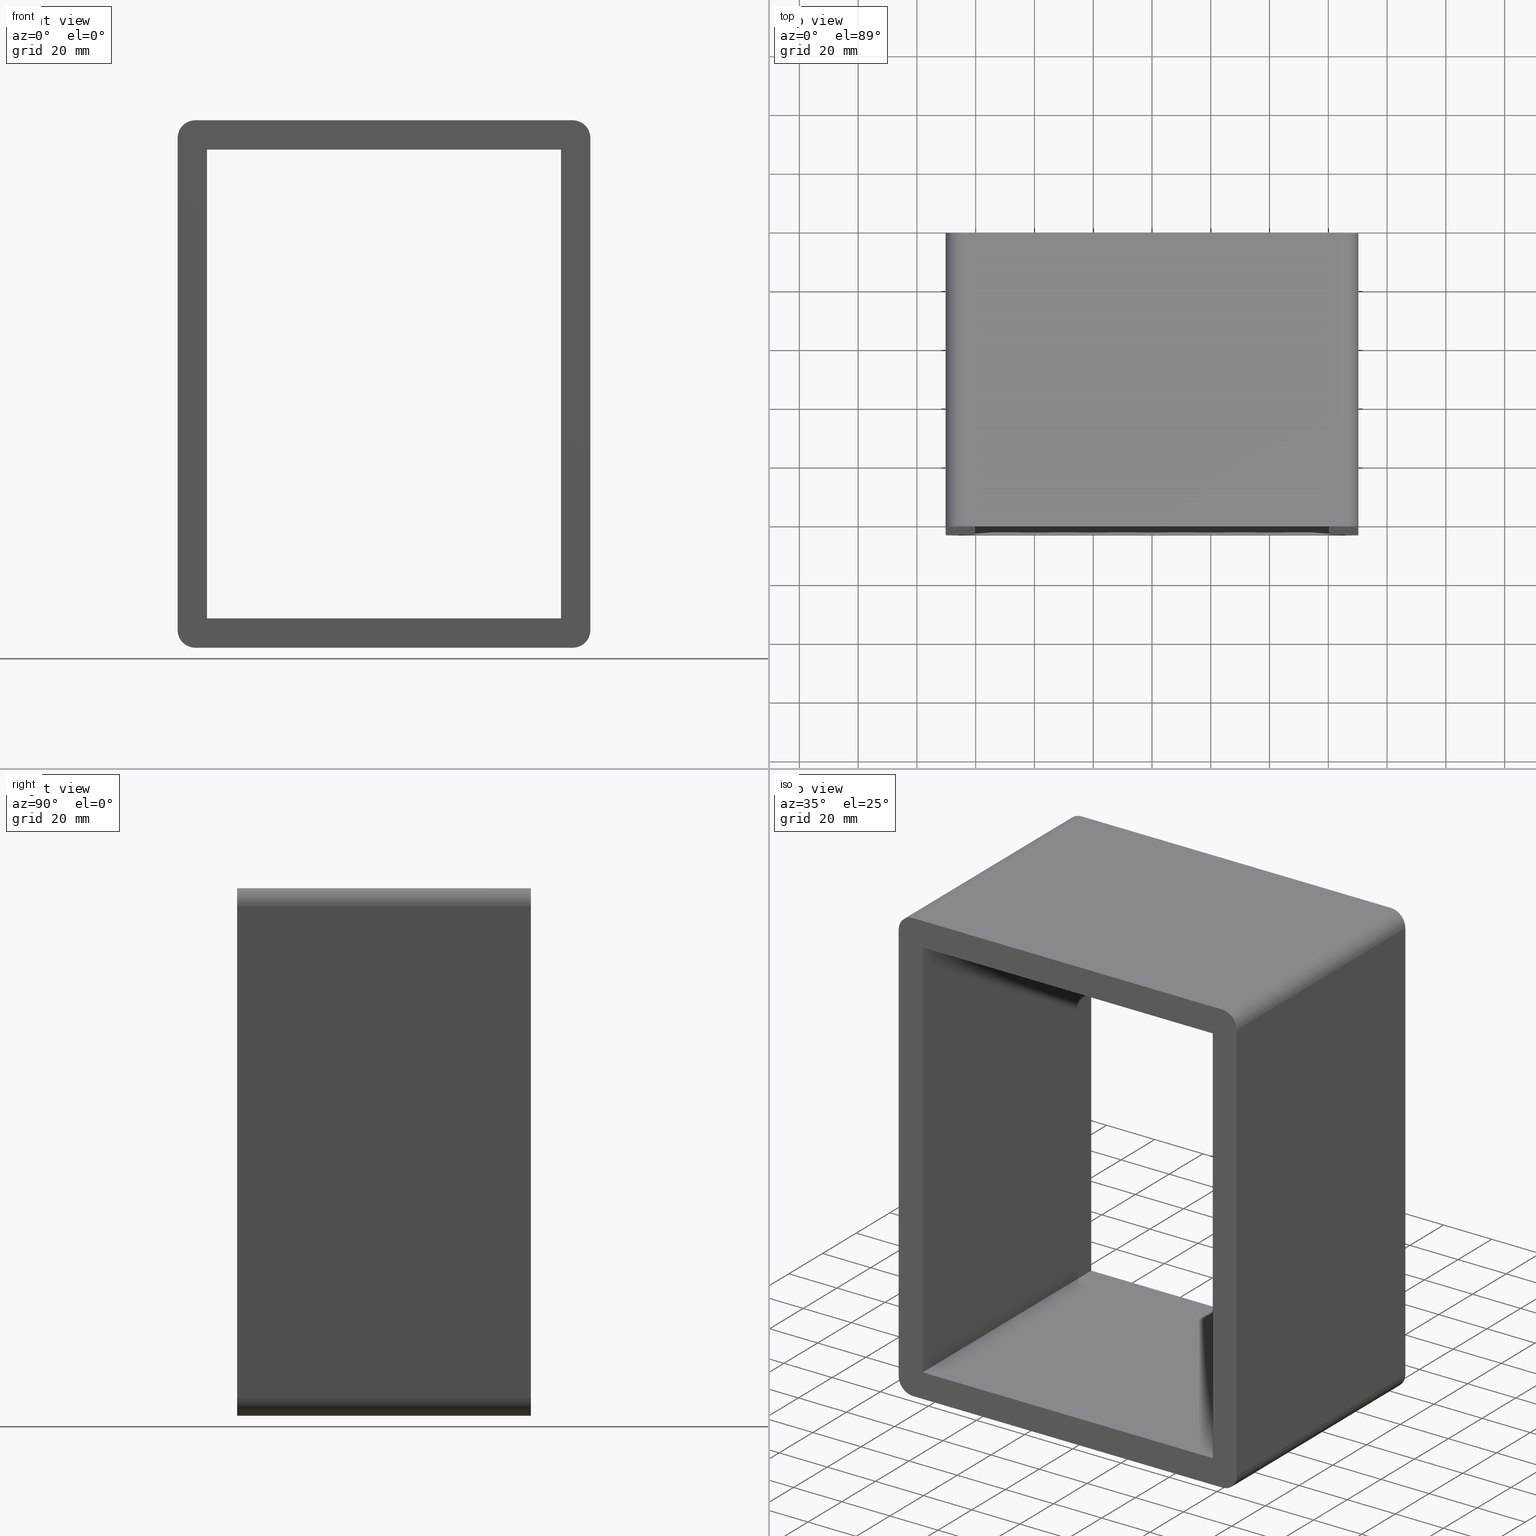
[diagram: canonical four-view strip — front | top / right | iso, engineering-drawing reading convention]
A machine part, canonical four-view strip (front | top / right | iso — engineering-drawing reading convention). The complete STEP part file that produces these views, byte-faithful:
ISO-10303-21;
HEADER;
/****************************************************************
 * Generated by software with PDElib inside                    *
 * PDElib Version v51a, created Wed 11/30/2011                  *
 * ITI Transcendata (http://www.transcendata.com/)              *
 ****************************************************************/
FILE_DESCRIPTION((''),'2;1');
FILE_NAME('C:\\RoxtecConfigurator\\CreatedFiles\\STEP\\SK4X1.stp','2013-01-29T16:11:37',(''),(''),'Autodesk Inventor 2013','Autodesk Inventor 2013','');
FILE_SCHEMA(('AUTOMOTIVE_DESIGN { 1 0 10303 214 1 1 1 1 }'));
ENDSEC;
DATA;
#5=APPLICATION_CONTEXT('automotive design');
#6=APPLICATION_PROTOCOL_DEFINITION('International Standard','automotive_design',2001,#5);
#7=PRODUCT_CONTEXT('',#5,'mechanical');
#8=PRODUCT('roxtec S_SF_G','roxtec S_SF_G',$,(#7));
#9=PRODUCT_RELATED_PRODUCT_CATEGORY('part',$,(#8));
#10=PRODUCT_DEFINITION_FORMATION('',$,#8);
#11=PRODUCT_DEFINITION_CONTEXT('part definition',#5,'design');
#12=PRODUCT_DEFINITION('',$,#10,#11);
#18=(NAMED_UNIT(*)PLANE_ANGLE_UNIT()SI_UNIT($,.RADIAN.));
#19=DIMENSIONAL_EXPONENTS(0.0,0.0,0.0,0.0,0.0,0.0,0.0);
#20=PLANE_ANGLE_MEASURE_WITH_UNIT(PLANE_ANGLE_MEASURE(0.0174532925),#18);
#24=(CONVERSION_BASED_UNIT('DEGREE',#20)NAMED_UNIT(#19)PLANE_ANGLE_UNIT());
#28=(NAMED_UNIT(*)SI_UNIT($,.STERADIAN.)SOLID_ANGLE_UNIT());
#32=(LENGTH_UNIT()NAMED_UNIT(*)SI_UNIT(.MILLI.,.METRE.));
#34=UNCERTAINTY_MEASURE_WITH_UNIT(LENGTH_MEASURE(0.01),#32,'DISTANCE_ACCURACY_VALUE','');
#36=(GEOMETRIC_REPRESENTATION_CONTEXT(3)GLOBAL_UNCERTAINTY_ASSIGNED_CONTEXT((#34))GLOBAL_UNIT_ASSIGNED_CONTEXT((#24,#28,#32))REPRESENTATION_CONTEXT('None','None'));
#37=AXIS2_PLACEMENT_3D('',#38,#39,#40);
#38=CARTESIAN_POINT('',(0.0,0.0,0.0));
#39=DIRECTION('',(0.0,0.0,1.0));
#40=DIRECTION('',(1.0,0.0,0.0));
#41=SHAPE_REPRESENTATION('',(#37),#36);
#42=PRODUCT_DEFINITION_SHAPE('','',#12);
#43=SHAPE_DEFINITION_REPRESENTATION(#42,#41);
#49=(NAMED_UNIT(*)PLANE_ANGLE_UNIT()SI_UNIT($,.RADIAN.));
#50=DIMENSIONAL_EXPONENTS(0.0,0.0,0.0,0.0,0.0,0.0,0.0);
#51=PLANE_ANGLE_MEASURE_WITH_UNIT(PLANE_ANGLE_MEASURE(0.0174532925),#49);
#55=(CONVERSION_BASED_UNIT('DEGREE',#51)NAMED_UNIT(#50)PLANE_ANGLE_UNIT());
#59=(NAMED_UNIT(*)SI_UNIT($,.STERADIAN.)SOLID_ANGLE_UNIT());
#63=(LENGTH_UNIT()NAMED_UNIT(*)SI_UNIT(.MILLI.,.METRE.));
#65=UNCERTAINTY_MEASURE_WITH_UNIT(LENGTH_MEASURE(0.000001),#63,'DISTANCE_ACCURACY_VALUE','');
#67=(GEOMETRIC_REPRESENTATION_CONTEXT(3)GLOBAL_UNCERTAINTY_ASSIGNED_CONTEXT((#65))GLOBAL_UNIT_ASSIGNED_CONTEXT((#55,#59,#63))REPRESENTATION_CONTEXT('','3D'));
#68=CARTESIAN_POINT('',(60.250000000000021,0.0,79.750000000000014));
#69=DIRECTION('',(1.0,0.0,0.0));
#70=DIRECTION('',(0.0,0.0,-1.0));
#71=AXIS2_PLACEMENT_3D('',#68,#69,#70);
#72=PLANE('',#71);
#73=CARTESIAN_POINT('',(60.250000000000021,97.0,-79.750000000000028));
#74=VERTEX_POINT('',#73);
#75=CARTESIAN_POINT('',(60.250000000000021,-3.0,-79.750000000000028));
#76=VERTEX_POINT('',#75);
#77=CARTESIAN_POINT('',(60.250000000000021,97.0,-79.750000000000028));
#78=DIRECTION('',(0.0,-1.0,0.0));
#79=VECTOR('',#78,100.0);
#80=LINE('',#77,#79);
#81=EDGE_CURVE('',#74,#76,#80,.T.);
#82=ORIENTED_EDGE('',*,*,#81,.T.);
#83=CARTESIAN_POINT('',(60.250000000000021,-3.0,79.750000000000014));
#84=VERTEX_POINT('',#83);
#85=CARTESIAN_POINT('',(60.250000000000021,-3.0,79.750000000000014));
#86=DIRECTION('',(0.0,0.0,-1.0));
#87=VECTOR('',#86,159.50000000000006);
#88=LINE('',#85,#87);
#89=EDGE_CURVE('',#84,#76,#88,.T.);
#90=ORIENTED_EDGE('',*,*,#89,.F.);
#91=CARTESIAN_POINT('',(60.250000000000021,97.0,79.750000000000014));
#92=VERTEX_POINT('',#91);
#93=CARTESIAN_POINT('',(60.250000000000021,-3.0,79.750000000000014));
#94=DIRECTION('',(0.0,1.0,0.0));
#95=VECTOR('',#94,100.0);
#96=LINE('',#93,#95);
#97=EDGE_CURVE('',#84,#92,#96,.T.);
#98=ORIENTED_EDGE('',*,*,#97,.T.);
#99=CARTESIAN_POINT('',(60.250000000000021,97.0,-79.750000000000043));
#100=DIRECTION('',(0.0,0.0,1.0));
#101=VECTOR('',#100,159.50000000000006);
#102=LINE('',#99,#101);
#103=EDGE_CURVE('',#74,#92,#102,.T.);
#104=ORIENTED_EDGE('',*,*,#103,.F.);
#105=EDGE_LOOP('',(#82,#90,#98,#104));
#106=FACE_OUTER_BOUND('',#105,.T.);
#107=ADVANCED_FACE('',(#106),#72,.F.);
#108=CARTESIAN_POINT('',(-60.25,0.0,79.750000000000014));
#109=DIRECTION('',(0.0,0.0,1.0));
#110=DIRECTION('',(1.0,0.0,0.0));
#111=AXIS2_PLACEMENT_3D('',#108,#109,#110);
#112=PLANE('',#111);
#113=ORIENTED_EDGE('',*,*,#97,.F.);
#114=CARTESIAN_POINT('',(-60.25,-3.0,79.750000000000014));
#115=VERTEX_POINT('',#114);
#116=CARTESIAN_POINT('',(-60.25,-3.0,79.750000000000014));
#117=DIRECTION('',(1.0,0.0,0.0));
#118=VECTOR('',#117,120.50000000000001);
#119=LINE('',#116,#118);
#120=EDGE_CURVE('',#115,#84,#119,.T.);
#121=ORIENTED_EDGE('',*,*,#120,.F.);
#122=CARTESIAN_POINT('',(-60.25,97.0,79.750000000000014));
#123=VERTEX_POINT('',#122);
#124=CARTESIAN_POINT('',(-60.25,-3.0,79.750000000000014));
#125=DIRECTION('',(0.0,1.0,0.0));
#126=VECTOR('',#125,100.0);
#127=LINE('',#124,#126);
#128=EDGE_CURVE('',#115,#123,#127,.T.);
#129=ORIENTED_EDGE('',*,*,#128,.T.);
#130=CARTESIAN_POINT('',(60.250000000000014,97.0,79.750000000000014));
#131=DIRECTION('',(-1.0,0.0,0.0));
#132=VECTOR('',#131,120.50000000000001);
#133=LINE('',#130,#132);
#134=EDGE_CURVE('',#92,#123,#133,.T.);
#135=ORIENTED_EDGE('',*,*,#134,.F.);
#136=EDGE_LOOP('',(#113,#121,#129,#135));
#137=FACE_OUTER_BOUND('',#136,.T.);
#138=ADVANCED_FACE('',(#137),#112,.F.);
#139=CARTESIAN_POINT('',(-60.25,0.0,-79.750000000000028));
#140=DIRECTION('',(-1.0,0.0,0.0));
#141=DIRECTION('',(0.0,0.0,1.0));
#142=AXIS2_PLACEMENT_3D('',#139,#140,#141);
#143=PLANE('',#142);
#144=ORIENTED_EDGE('',*,*,#128,.F.);
#145=CARTESIAN_POINT('',(-60.25,-3.0,-79.750000000000028));
#146=VERTEX_POINT('',#145);
#147=CARTESIAN_POINT('',(-60.25,-3.0,-79.750000000000028));
#148=DIRECTION('',(0.0,0.0,1.0));
#149=VECTOR('',#148,159.50000000000006);
#150=LINE('',#147,#149);
#151=EDGE_CURVE('',#146,#115,#150,.T.);
#152=ORIENTED_EDGE('',*,*,#151,.F.);
#153=CARTESIAN_POINT('',(-60.25,97.0,-79.750000000000028));
#154=VERTEX_POINT('',#153);
#155=CARTESIAN_POINT('',(-60.25,-3.0,-79.750000000000028));
#156=DIRECTION('',(0.0,1.0,0.0));
#157=VECTOR('',#156,100.0);
#158=LINE('',#155,#157);
#159=EDGE_CURVE('',#146,#154,#158,.T.);
#160=ORIENTED_EDGE('',*,*,#159,.T.);
#161=CARTESIAN_POINT('',(-60.25,97.0,79.750000000000028));
#162=DIRECTION('',(0.0,0.0,-1.0));
#163=VECTOR('',#162,159.50000000000006);
#164=LINE('',#161,#163);
#165=EDGE_CURVE('',#123,#154,#164,.T.);
#166=ORIENTED_EDGE('',*,*,#165,.F.);
#167=EDGE_LOOP('',(#144,#152,#160,#166));
#168=FACE_OUTER_BOUND('',#167,.T.);
#169=ADVANCED_FACE('',(#168),#143,.F.);
#170=CARTESIAN_POINT('',(60.250000000000021,0.0,-79.750000000000028));
#171=DIRECTION('',(0.0,0.0,-1.0));
#172=DIRECTION('',(-1.0,0.0,0.0));
#173=AXIS2_PLACEMENT_3D('',#170,#171,#172);
#174=PLANE('',#173);
#175=ORIENTED_EDGE('',*,*,#159,.F.);
#176=CARTESIAN_POINT('',(60.250000000000021,-3.0,-79.750000000000028));
#177=DIRECTION('',(-1.0,0.0,0.0));
#178=VECTOR('',#177,120.50000000000003);
#179=LINE('',#176,#178);
#180=EDGE_CURVE('',#76,#146,#179,.T.);
#181=ORIENTED_EDGE('',*,*,#180,.F.);
#182=ORIENTED_EDGE('',*,*,#81,.F.);
#183=CARTESIAN_POINT('',(-60.25,97.0,-79.750000000000028));
#184=DIRECTION('',(1.0,0.0,0.0));
#185=VECTOR('',#184,120.50000000000003);
#186=LINE('',#183,#185);
#187=EDGE_CURVE('',#154,#74,#186,.T.);
#188=ORIENTED_EDGE('',*,*,#187,.F.);
#189=EDGE_LOOP('',(#175,#181,#182,#188));
#190=FACE_OUTER_BOUND('',#189,.T.);
#191=ADVANCED_FACE('',(#190),#174,.F.);
#192=CARTESIAN_POINT('',(-2.147868E-016,-3.0,-9.235834E-015));
#193=DIRECTION('',(0.0,1.0,0.0));
#194=DIRECTION('',(0.0,0.0,1.0));
#195=AXIS2_PLACEMENT_3D('',#192,#193,#194);
#196=PLANE('',#195);
#197=CARTESIAN_POINT('',(70.25,-3.0,-83.750000000000028));
#198=VERTEX_POINT('',#197);
#199=CARTESIAN_POINT('',(70.25,-3.0,83.75));
#200=VERTEX_POINT('',#199);
#201=CARTESIAN_POINT('',(70.25,-3.0,-83.750000000000028));
#202=DIRECTION('',(0.0,0.0,1.0));
#203=VECTOR('',#202,167.50000000000003);
#204=LINE('',#201,#203);
#205=EDGE_CURVE('',#198,#200,#204,.T.);
#206=ORIENTED_EDGE('',*,*,#205,.T.);
#207=CARTESIAN_POINT('',(64.25,-3.0,89.750000000000014));
#208=VERTEX_POINT('',#207);
#209=CARTESIAN_POINT('',(64.25,-3.0,83.75));
#210=DIRECTION('',(0.0,-1.0,0.0));
#211=DIRECTION('',(0.0,0.0,1.0));
#212=AXIS2_PLACEMENT_3D('',#209,#210,#211);
#213=CIRCLE('',#212,6.000000000000001);
#214=EDGE_CURVE('',#200,#208,#213,.T.);
#215=ORIENTED_EDGE('',*,*,#214,.T.);
#216=CARTESIAN_POINT('',(-64.25,-3.0,89.750000000000014));
#217=VERTEX_POINT('',#216);
#218=CARTESIAN_POINT('',(64.25,-3.0,89.750000000000014));
#219=DIRECTION('',(-1.0,0.0,0.0));
#220=VECTOR('',#219,128.5);
#221=LINE('',#218,#220);
#222=EDGE_CURVE('',#208,#217,#221,.T.);
#223=ORIENTED_EDGE('',*,*,#222,.T.);
#224=CARTESIAN_POINT('',(-70.25,-3.0,83.75));
#225=VERTEX_POINT('',#224);
#226=CARTESIAN_POINT('',(-64.25,-3.0,83.75));
#227=DIRECTION('',(0.0,-1.0,0.0));
#228=DIRECTION('',(-1.0,0.0,0.0));
#229=AXIS2_PLACEMENT_3D('',#226,#227,#228);
#230=CIRCLE('',#229,6.000000000000001);
#231=EDGE_CURVE('',#217,#225,#230,.T.);
#232=ORIENTED_EDGE('',*,*,#231,.T.);
#233=CARTESIAN_POINT('',(-70.25,-3.0,-83.750000000000028));
#234=VERTEX_POINT('',#233);
#235=CARTESIAN_POINT('',(-70.25,-3.0,83.75));
#236=DIRECTION('',(0.0,0.0,-1.0));
#237=VECTOR('',#236,167.50000000000003);
#238=LINE('',#235,#237);
#239=EDGE_CURVE('',#225,#234,#238,.T.);
#240=ORIENTED_EDGE('',*,*,#239,.T.);
#241=CARTESIAN_POINT('',(-64.25,-3.0,-89.750000000000014));
#242=VERTEX_POINT('',#241);
#243=CARTESIAN_POINT('',(-64.25,-3.0,-83.750000000000028));
#244=DIRECTION('',(0.0,-1.0,0.0));
#245=DIRECTION('',(0.0,0.0,-1.0));
#246=AXIS2_PLACEMENT_3D('',#243,#244,#245);
#247=CIRCLE('',#246,6.000000000000001);
#248=EDGE_CURVE('',#234,#242,#247,.T.);
#249=ORIENTED_EDGE('',*,*,#248,.T.);
#250=CARTESIAN_POINT('',(64.25,-3.0,-89.750000000000014));
#251=VERTEX_POINT('',#250);
#252=CARTESIAN_POINT('',(-64.25,-3.0,-89.750000000000014));
#253=DIRECTION('',(1.0,0.0,0.0));
#254=VECTOR('',#253,128.5);
#255=LINE('',#252,#254);
#256=EDGE_CURVE('',#242,#251,#255,.T.);
#257=ORIENTED_EDGE('',*,*,#256,.T.);
#258=CARTESIAN_POINT('',(64.25,-3.0,-83.750000000000028));
#259=DIRECTION('',(0.0,-1.0,0.0));
#260=DIRECTION('',(1.0,0.0,0.0));
#261=AXIS2_PLACEMENT_3D('',#258,#259,#260);
#262=CIRCLE('',#261,6.000000000000001);
#263=EDGE_CURVE('',#251,#198,#262,.T.);
#264=ORIENTED_EDGE('',*,*,#263,.T.);
#265=EDGE_LOOP('',(#206,#215,#223,#232,#240,#249,#257,#264));
#266=FACE_OUTER_BOUND('',#265,.T.);
#267=ORIENTED_EDGE('',*,*,#89,.T.);
#268=ORIENTED_EDGE('',*,*,#180,.T.);
#269=ORIENTED_EDGE('',*,*,#151,.T.);
#270=ORIENTED_EDGE('',*,*,#120,.T.);
#271=EDGE_LOOP('',(#267,#268,#269,#270));
#272=FACE_BOUND('',#271,.T.);
#273=ADVANCED_FACE('',(#266,#272),#196,.F.);
#274=CARTESIAN_POINT('',(64.25,0.0,83.75));
#275=DIRECTION('',(0.0,1.0,0.0));
#276=DIRECTION('',(0.0,0.0,1.0));
#277=AXIS2_PLACEMENT_3D('',#274,#275,#276);
#278=CYLINDRICAL_SURFACE('',#277,6.000000000000001);
#279=CARTESIAN_POINT('',(70.25,97.0,83.75));
#280=VERTEX_POINT('',#279);
#281=CARTESIAN_POINT('',(70.25,97.0,83.75));
#282=DIRECTION('',(0.0,-1.0,0.0));
#283=VECTOR('',#282,100.0);
#284=LINE('',#281,#283);
#285=EDGE_CURVE('',#280,#200,#284,.T.);
#286=ORIENTED_EDGE('',*,*,#285,.F.);
#287=CARTESIAN_POINT('',(64.25,97.0,89.750000000000014));
#288=VERTEX_POINT('',#287);
#289=CARTESIAN_POINT('',(64.25,97.0,83.75));
#290=DIRECTION('',(0.0,1.0,0.0));
#291=DIRECTION('',(0.0,0.0,1.0));
#292=AXIS2_PLACEMENT_3D('',#289,#290,#291);
#293=CIRCLE('',#292,6.000000000000001);
#294=EDGE_CURVE('',#288,#280,#293,.T.);
#295=ORIENTED_EDGE('',*,*,#294,.F.);
#296=CARTESIAN_POINT('',(64.25,-3.0,89.750000000000014));
#297=DIRECTION('',(0.0,1.0,0.0));
#298=VECTOR('',#297,100.0);
#299=LINE('',#296,#298);
#300=EDGE_CURVE('',#208,#288,#299,.T.);
#301=ORIENTED_EDGE('',*,*,#300,.F.);
#302=ORIENTED_EDGE('',*,*,#214,.F.);
#303=EDGE_LOOP('',(#286,#295,#301,#302));
#304=FACE_OUTER_BOUND('',#303,.T.);
#305=ADVANCED_FACE('',(#304),#278,.T.);
#306=CARTESIAN_POINT('',(-64.25,0.0,89.750000000000014));
#307=DIRECTION('',(0.0,0.0,1.0));
#308=DIRECTION('',(1.0,0.0,0.0));
#309=AXIS2_PLACEMENT_3D('',#306,#307,#308);
#310=PLANE('',#309);
#311=ORIENTED_EDGE('',*,*,#300,.T.);
#312=CARTESIAN_POINT('',(-64.25,97.0,89.750000000000014));
#313=VERTEX_POINT('',#312);
#314=CARTESIAN_POINT('',(-64.25,97.0,89.750000000000014));
#315=DIRECTION('',(1.0,0.0,0.0));
#316=VECTOR('',#315,128.5);
#317=LINE('',#314,#316);
#318=EDGE_CURVE('',#313,#288,#317,.T.);
#319=ORIENTED_EDGE('',*,*,#318,.F.);
#320=CARTESIAN_POINT('',(-64.25,-3.0,89.750000000000014));
#321=DIRECTION('',(0.0,1.0,0.0));
#322=VECTOR('',#321,100.0);
#323=LINE('',#320,#322);
#324=EDGE_CURVE('',#217,#313,#323,.T.);
#325=ORIENTED_EDGE('',*,*,#324,.F.);
#326=ORIENTED_EDGE('',*,*,#222,.F.);
#327=EDGE_LOOP('',(#311,#319,#325,#326));
#328=FACE_OUTER_BOUND('',#327,.T.);
#329=ADVANCED_FACE('',(#328),#310,.T.);
#330=CARTESIAN_POINT('',(-64.25,0.0,83.75));
#331=DIRECTION('',(0.0,1.0,0.0));
#332=DIRECTION('',(-1.0,0.0,0.0));
#333=AXIS2_PLACEMENT_3D('',#330,#331,#332);
#334=CYLINDRICAL_SURFACE('',#333,6.000000000000001);
#335=ORIENTED_EDGE('',*,*,#324,.T.);
#336=CARTESIAN_POINT('',(-70.25,97.0,83.75));
#337=VERTEX_POINT('',#336);
#338=CARTESIAN_POINT('',(-64.25,97.0,83.75));
#339=DIRECTION('',(0.0,1.0,0.0));
#340=DIRECTION('',(-1.0,0.0,0.0));
#341=AXIS2_PLACEMENT_3D('',#338,#339,#340);
#342=CIRCLE('',#341,6.000000000000001);
#343=EDGE_CURVE('',#337,#313,#342,.T.);
#344=ORIENTED_EDGE('',*,*,#343,.F.);
#345=CARTESIAN_POINT('',(-70.25,-3.0,83.75));
#346=DIRECTION('',(0.0,1.0,0.0));
#347=VECTOR('',#346,100.0);
#348=LINE('',#345,#347);
#349=EDGE_CURVE('',#225,#337,#348,.T.);
#350=ORIENTED_EDGE('',*,*,#349,.F.);
#351=ORIENTED_EDGE('',*,*,#231,.F.);
#352=EDGE_LOOP('',(#335,#344,#350,#351));
#353=FACE_OUTER_BOUND('',#352,.T.);
#354=ADVANCED_FACE('',(#353),#334,.T.);
#355=CARTESIAN_POINT('',(-70.25,0.0,-83.750000000000028));
#356=DIRECTION('',(-1.0,0.0,0.0));
#357=DIRECTION('',(0.0,0.0,1.0));
#358=AXIS2_PLACEMENT_3D('',#355,#356,#357);
#359=PLANE('',#358);
#360=ORIENTED_EDGE('',*,*,#349,.T.);
#361=CARTESIAN_POINT('',(-70.25,97.0,-83.750000000000028));
#362=VERTEX_POINT('',#361);
#363=CARTESIAN_POINT('',(-70.25,97.0,-83.750000000000028));
#364=DIRECTION('',(0.0,0.0,1.0));
#365=VECTOR('',#364,167.50000000000003);
#366=LINE('',#363,#365);
#367=EDGE_CURVE('',#362,#337,#366,.T.);
#368=ORIENTED_EDGE('',*,*,#367,.F.);
#369=CARTESIAN_POINT('',(-70.25,-3.0,-83.750000000000028));
#370=DIRECTION('',(0.0,1.0,0.0));
#371=VECTOR('',#370,100.0);
#372=LINE('',#369,#371);
#373=EDGE_CURVE('',#234,#362,#372,.T.);
#374=ORIENTED_EDGE('',*,*,#373,.F.);
#375=ORIENTED_EDGE('',*,*,#239,.F.);
#376=EDGE_LOOP('',(#360,#368,#374,#375));
#377=FACE_OUTER_BOUND('',#376,.T.);
#378=ADVANCED_FACE('',(#377),#359,.T.);
#379=CARTESIAN_POINT('',(-64.25,0.0,-83.750000000000028));
#380=DIRECTION('',(0.0,1.0,0.0));
#381=DIRECTION('',(0.0,0.0,-1.0));
#382=AXIS2_PLACEMENT_3D('',#379,#380,#381);
#383=CYLINDRICAL_SURFACE('',#382,6.000000000000001);
#384=ORIENTED_EDGE('',*,*,#373,.T.);
#385=CARTESIAN_POINT('',(-64.25,97.0,-89.750000000000014));
#386=VERTEX_POINT('',#385);
#387=CARTESIAN_POINT('',(-64.25,97.0,-83.750000000000028));
#388=DIRECTION('',(0.0,1.0,0.0));
#389=DIRECTION('',(0.0,0.0,-1.0));
#390=AXIS2_PLACEMENT_3D('',#387,#388,#389);
#391=CIRCLE('',#390,6.000000000000001);
#392=EDGE_CURVE('',#386,#362,#391,.T.);
#393=ORIENTED_EDGE('',*,*,#392,.F.);
#394=CARTESIAN_POINT('',(-64.25,-3.0,-89.750000000000014));
#395=DIRECTION('',(0.0,1.0,0.0));
#396=VECTOR('',#395,100.0);
#397=LINE('',#394,#396);
#398=EDGE_CURVE('',#242,#386,#397,.T.);
#399=ORIENTED_EDGE('',*,*,#398,.F.);
#400=ORIENTED_EDGE('',*,*,#248,.F.);
#401=EDGE_LOOP('',(#384,#393,#399,#400));
#402=FACE_OUTER_BOUND('',#401,.T.);
#403=ADVANCED_FACE('',(#402),#383,.T.);
#404=CARTESIAN_POINT('',(64.25,0.0,-89.750000000000014));
#405=DIRECTION('',(0.0,0.0,-1.0));
#406=DIRECTION('',(-1.0,0.0,0.0));
#407=AXIS2_PLACEMENT_3D('',#404,#405,#406);
#408=PLANE('',#407);
#409=ORIENTED_EDGE('',*,*,#398,.T.);
#410=CARTESIAN_POINT('',(64.25,97.0,-89.750000000000014));
#411=VERTEX_POINT('',#410);
#412=CARTESIAN_POINT('',(64.25,97.0,-89.750000000000014));
#413=DIRECTION('',(-1.0,0.0,0.0));
#414=VECTOR('',#413,128.5);
#415=LINE('',#412,#414);
#416=EDGE_CURVE('',#411,#386,#415,.T.);
#417=ORIENTED_EDGE('',*,*,#416,.F.);
#418=CARTESIAN_POINT('',(64.25,-3.0,-89.750000000000014));
#419=DIRECTION('',(0.0,1.0,0.0));
#420=VECTOR('',#419,100.0);
#421=LINE('',#418,#420);
#422=EDGE_CURVE('',#251,#411,#421,.T.);
#423=ORIENTED_EDGE('',*,*,#422,.F.);
#424=ORIENTED_EDGE('',*,*,#256,.F.);
#425=EDGE_LOOP('',(#409,#417,#423,#424));
#426=FACE_OUTER_BOUND('',#425,.T.);
#427=ADVANCED_FACE('',(#426),#408,.T.);
#428=CARTESIAN_POINT('',(64.25,0.0,-83.750000000000028));
#429=DIRECTION('',(0.0,1.0,0.0));
#430=DIRECTION('',(1.0,0.0,0.0));
#431=AXIS2_PLACEMENT_3D('',#428,#429,#430);
#432=CYLINDRICAL_SURFACE('',#431,6.000000000000001);
#433=ORIENTED_EDGE('',*,*,#422,.T.);
#434=CARTESIAN_POINT('',(70.25,97.0,-83.750000000000028));
#435=VERTEX_POINT('',#434);
#436=CARTESIAN_POINT('',(64.25,97.0,-83.750000000000028));
#437=DIRECTION('',(0.0,1.0,0.0));
#438=DIRECTION('',(1.0,0.0,0.0));
#439=AXIS2_PLACEMENT_3D('',#436,#437,#438);
#440=CIRCLE('',#439,6.000000000000001);
#441=EDGE_CURVE('',#435,#411,#440,.T.);
#442=ORIENTED_EDGE('',*,*,#441,.F.);
#443=CARTESIAN_POINT('',(70.25,-3.0,-83.750000000000028));
#444=DIRECTION('',(0.0,1.0,0.0));
#445=VECTOR('',#444,100.0);
#446=LINE('',#443,#445);
#447=EDGE_CURVE('',#198,#435,#446,.T.);
#448=ORIENTED_EDGE('',*,*,#447,.F.);
#449=ORIENTED_EDGE('',*,*,#263,.F.);
#450=EDGE_LOOP('',(#433,#442,#448,#449));
#451=FACE_OUTER_BOUND('',#450,.T.);
#452=ADVANCED_FACE('',(#451),#432,.T.);
#453=CARTESIAN_POINT('',(70.25,0.0,83.75));
#454=DIRECTION('',(1.0,0.0,0.0));
#455=DIRECTION('',(0.0,0.0,-1.0));
#456=AXIS2_PLACEMENT_3D('',#453,#454,#455);
#457=PLANE('',#456);
#458=ORIENTED_EDGE('',*,*,#447,.T.);
#459=CARTESIAN_POINT('',(70.25,97.0,83.75));
#460=DIRECTION('',(0.0,0.0,-1.0));
#461=VECTOR('',#460,167.50000000000003);
#462=LINE('',#459,#461);
#463=EDGE_CURVE('',#280,#435,#462,.T.);
#464=ORIENTED_EDGE('',*,*,#463,.F.);
#465=ORIENTED_EDGE('',*,*,#285,.T.);
#466=ORIENTED_EDGE('',*,*,#205,.F.);
#467=EDGE_LOOP('',(#458,#464,#465,#466));
#468=FACE_OUTER_BOUND('',#467,.T.);
#469=ADVANCED_FACE('',(#468),#457,.T.);
#470=CARTESIAN_POINT('',(-2.147868E-016,97.0,-9.235834E-015));
#471=DIRECTION('',(0.0,1.0,0.0));
#472=DIRECTION('',(0.0,0.0,1.0));
#473=AXIS2_PLACEMENT_3D('',#470,#471,#472);
#474=PLANE('',#473);
#475=ORIENTED_EDGE('',*,*,#463,.T.);
#476=ORIENTED_EDGE('',*,*,#441,.T.);
#477=ORIENTED_EDGE('',*,*,#416,.T.);
#478=ORIENTED_EDGE('',*,*,#392,.T.);
#479=ORIENTED_EDGE('',*,*,#367,.T.);
#480=ORIENTED_EDGE('',*,*,#343,.T.);
#481=ORIENTED_EDGE('',*,*,#318,.T.);
#482=ORIENTED_EDGE('',*,*,#294,.T.);
#483=EDGE_LOOP('',(#475,#476,#477,#478,#479,#480,#481,#482));
#484=FACE_OUTER_BOUND('',#483,.T.);
#485=ORIENTED_EDGE('',*,*,#103,.T.);
#486=ORIENTED_EDGE('',*,*,#134,.T.);
#487=ORIENTED_EDGE('',*,*,#165,.T.);
#488=ORIENTED_EDGE('',*,*,#187,.T.);
#489=EDGE_LOOP('',(#485,#486,#487,#488));
#490=FACE_BOUND('',#489,.T.);
#491=ADVANCED_FACE('',(#484,#490),#474,.T.);
#492=CLOSED_SHELL('',(#107,#138,#169,#191,#273,#305,#329,#354,#378,#403,#427,#452,#469,#491));
#493=MANIFOLD_SOLID_BREP('Solid1',#492);
#494=COLOUR_RGB('Silicon Nitride - Polished',0.800000011920929,0.796078443527222,0.701960802078247);
#495=FILL_AREA_STYLE_COLOUR('Silicon Nitride - Polished',#494);
#496=FILL_AREA_STYLE('Silicon Nitride - Polished',(#495));
#497=SURFACE_STYLE_FILL_AREA(#496);
#498=SURFACE_SIDE_STYLE('Silicon Nitride - Polished',(#497));
#499=SURFACE_STYLE_USAGE(.BOTH.,#498);
#500=PRESENTATION_STYLE_ASSIGNMENT((#499));
#501=STYLED_ITEM('',(#500),#493);
#502=MECHANICAL_DESIGN_GEOMETRIC_PRESENTATION_REPRESENTATION('',(#501),#36);
#503=ADVANCED_BREP_SHAPE_REPRESENTATION('ABSR',(#493),#36);
#504=SHAPE_REPRESENTATION_RELATIONSHIP('SRR','None',#503,#41);
ENDSEC;
END-ISO-10303-21;
